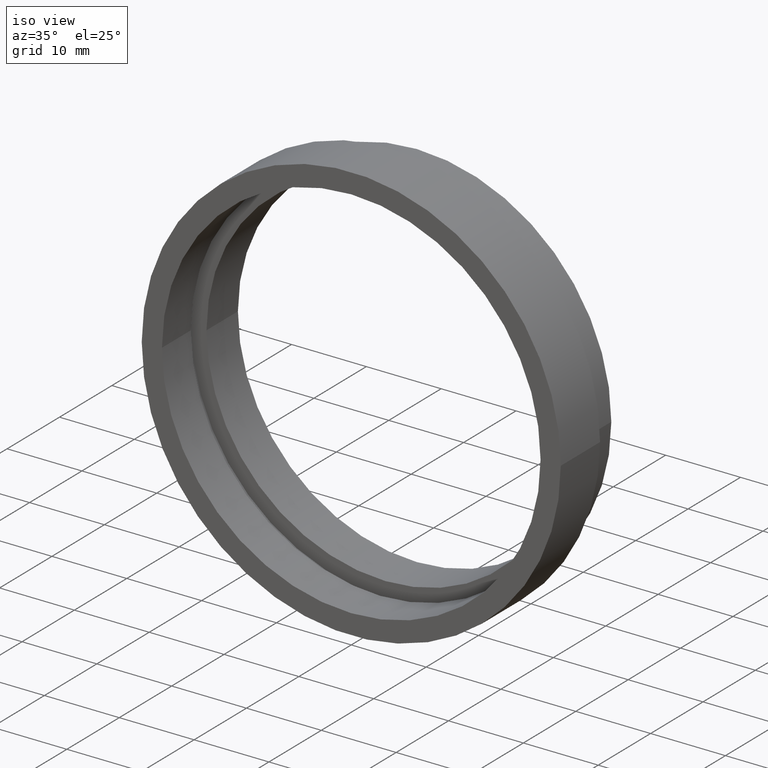
[diagram: clean part render]
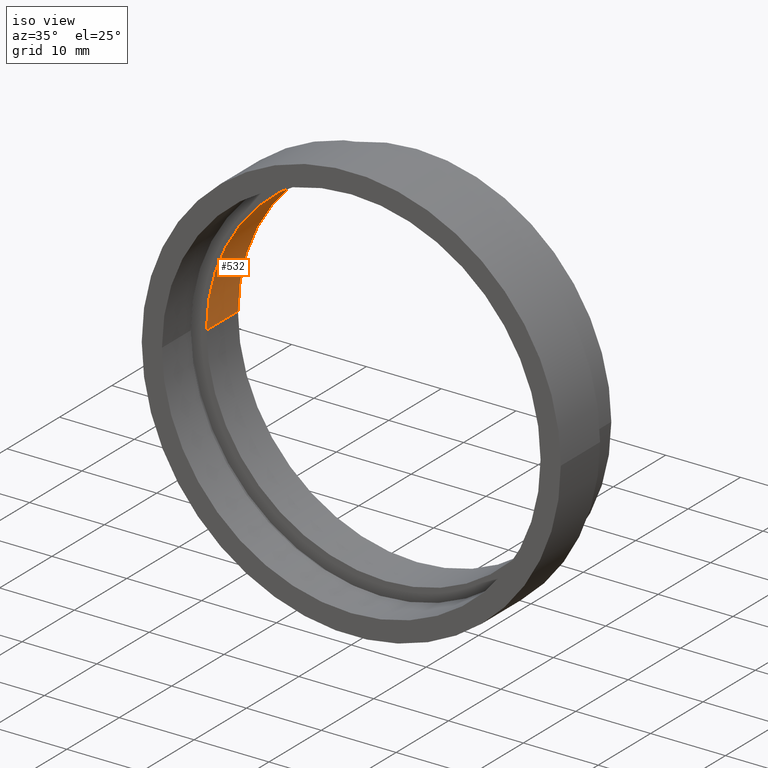
[diagram: same view with one face highlighted and labeled with its STEP entity id]
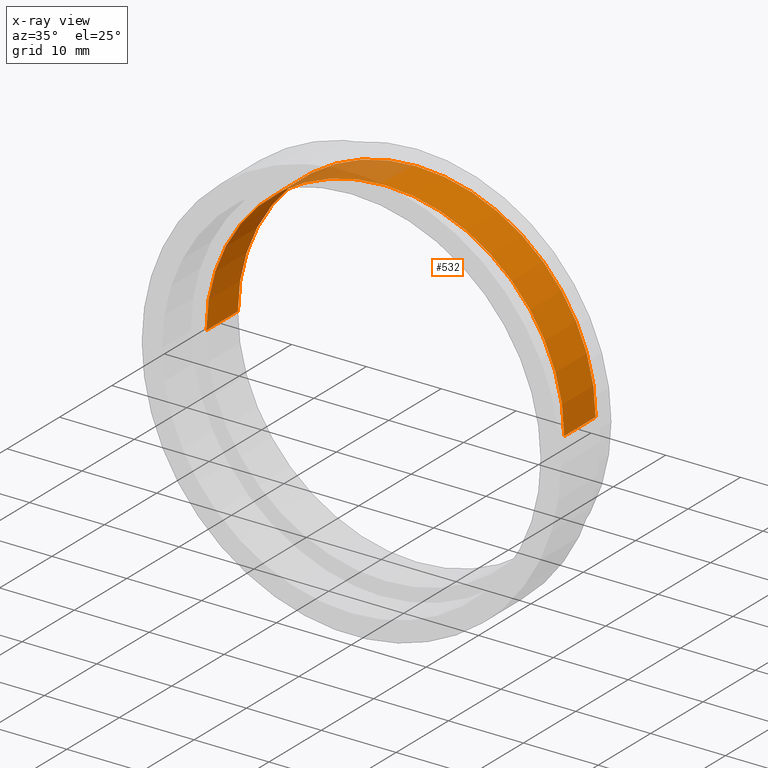
[diagram: x-ray of the same camera — body ghosted, the highlighted face saturated]
A machine part, iso view. The second image highlights one B-rep face of the part: STEP entity #532.
The next image is the same camera in x-ray: the body ghosted, the highlighted face saturated — about 10% of this face is hidden behind the body in this view.
In plain terms, the highlighted cylindrical surface (partial cylindrical patch) has radius 23.9 mm, axis along (-0, 1, -0).
Its self-contained STEP definition (entity closure, byte-faithful):
#6 = VERTEX_POINT ( 'NONE', #528 ) ;
#12 = VERTEX_POINT ( 'NONE', #148 ) ;
#14 = CARTESIAN_POINT ( 'NONE',  ( 5.371323195044473300E-016, 12.49999999999999600, 0.0000000000000000000 ) ) ;
#38 = DIRECTION ( 'NONE',  ( -1.224646799147351000E-016, 1.000000000000000000, -0.0000000000000000000 ) ) ;
#56 = AXIS2_PLACEMENT_3D ( 'NONE', #610, #436, #87 ) ;
#87 = DIRECTION ( 'NONE',  ( -1.000000000000000000, -1.088738583249042200E-016, 0.0000000000000000000 ) ) ;
#99 = CARTESIAN_POINT ( 'NONE',  ( 23.89999999999999900, 12.50000000000000000, 2.926905849962173700E-015 ) ) ;
#133 = ORIENTED_EDGE ( 'NONE', *, *, #402, .T. ) ;
#139 = AXIS2_PLACEMENT_3D ( 'NONE', #14, #582, #409 ) ;
#144 = VERTEX_POINT ( 'NONE', #376 ) ;
#148 = CARTESIAN_POINT ( 'NONE',  ( -23.89999999999999900, 6.499999999999992900, 0.0000000000000000000 ) ) ;
#175 = VECTOR ( 'NONE', #38, 1000.000000000000000 ) ;
#199 = EDGE_CURVE ( 'NONE', #12, #144, #442, .T. ) ;
#213 = CIRCLE ( 'NONE', #139, 23.89999999999999900 ) ;
#229 = LINE ( 'NONE', #364, #349 ) ;
#231 = CARTESIAN_POINT ( 'NONE',  ( -23.89999999999999900, 16.88601823708207300, 0.0000000000000000000 ) ) ;
#243 = EDGE_CURVE ( 'NONE', #12, #6, #282, .T. ) ;
#252 = ORIENTED_EDGE ( 'NONE', *, *, #199, .F. ) ;
#282 = LINE ( 'NONE', #231, #175 ) ;
#323 = DIRECTION ( 'NONE',  ( -1.000000000000000000, -1.451651444332056200E-016, 0.0000000000000000000 ) ) ;
#349 = VECTOR ( 'NONE', #366, 1000.000000000000000 ) ;
#364 = CARTESIAN_POINT ( 'NONE',  ( 23.89999999999999900, 16.88601823708208000, 2.926905849962173700E-015 ) ) ;
#366 = DIRECTION ( 'NONE',  ( -1.224646799147351000E-016, 1.000000000000000000, -0.0000000000000000000 ) ) ;
#367 = EDGE_CURVE ( 'NONE', #144, #398, #229, .T. ) ;
#376 = CARTESIAN_POINT ( 'NONE',  ( 23.89999999999999900, 6.499999999999998200, 2.926905849962173700E-015 ) ) ;
#377 = FACE_OUTER_BOUND ( 'NONE', #574, .T. ) ;
#388 = CYLINDRICAL_SURFACE ( 'NONE', #559, 23.89999999999999900 ) ;
#398 = VERTEX_POINT ( 'NONE', #99 ) ;
#402 = EDGE_CURVE ( 'NONE', #6, #398, #213, .T. ) ;
#409 = DIRECTION ( 'NONE',  ( -1.000000000000000000, -1.451651444332056200E-016, 0.0000000000000000000 ) ) ;
#429 = ORIENTED_EDGE ( 'NONE', *, *, #243, .T. ) ;
#436 = DIRECTION ( 'NONE',  ( -1.224646799147351000E-016, 1.000000000000000000, -0.0000000000000000000 ) ) ;
#442 = CIRCLE ( 'NONE', #56, 23.89999999999999900 ) ;
#519 = ORIENTED_EDGE ( 'NONE', *, *, #367, .F. ) ;
#528 = CARTESIAN_POINT ( 'NONE',  ( -23.89999999999999900, 12.49999999999999300, 0.0000000000000000000 ) ) ;
#532 = ADVANCED_FACE ( 'NONE', ( #377 ), #388, .F. ) ;
#556 = CARTESIAN_POINT ( 'NONE',  ( 0.0000000000000000000, 16.88601823708207700, 0.0000000000000000000 ) ) ;
#559 = AXIS2_PLACEMENT_3D ( 'NONE', #556, #603, #323 ) ;
#574 = EDGE_LOOP ( 'NONE', ( #519, #252, #429, #133 ) ) ;
#582 = DIRECTION ( 'NONE',  ( -1.224646799147351000E-016, 1.000000000000000000, -0.0000000000000000000 ) ) ;
#603 = DIRECTION ( 'NONE',  ( -1.224646799147351000E-016, 1.000000000000000000, -0.0000000000000000000 ) ) ;
#610 = CARTESIAN_POINT ( 'NONE',  ( 1.271920398992858200E-015, 6.499999999999995600, 0.0000000000000000000 ) ) ;